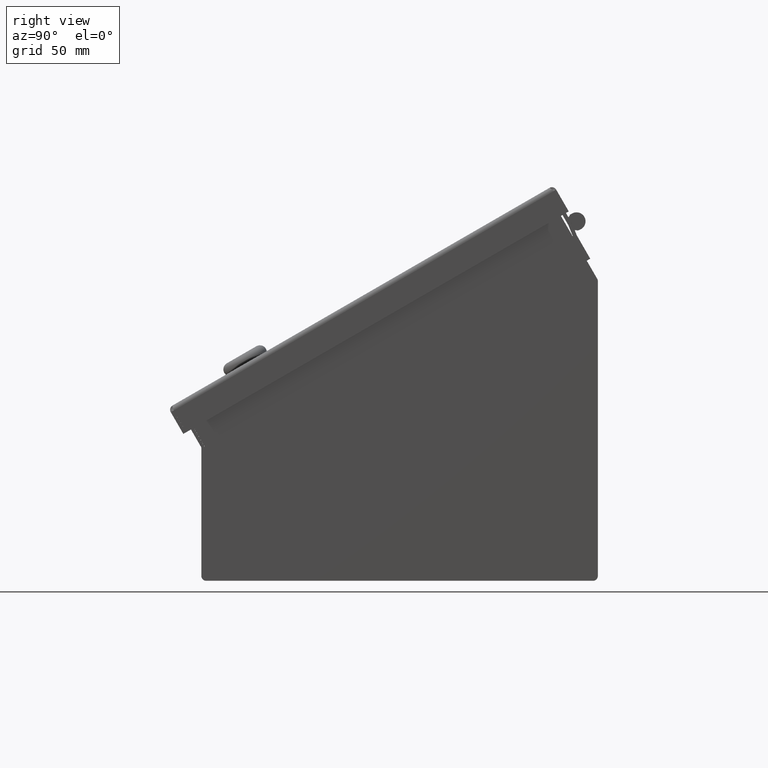
[diagram: clean part render]
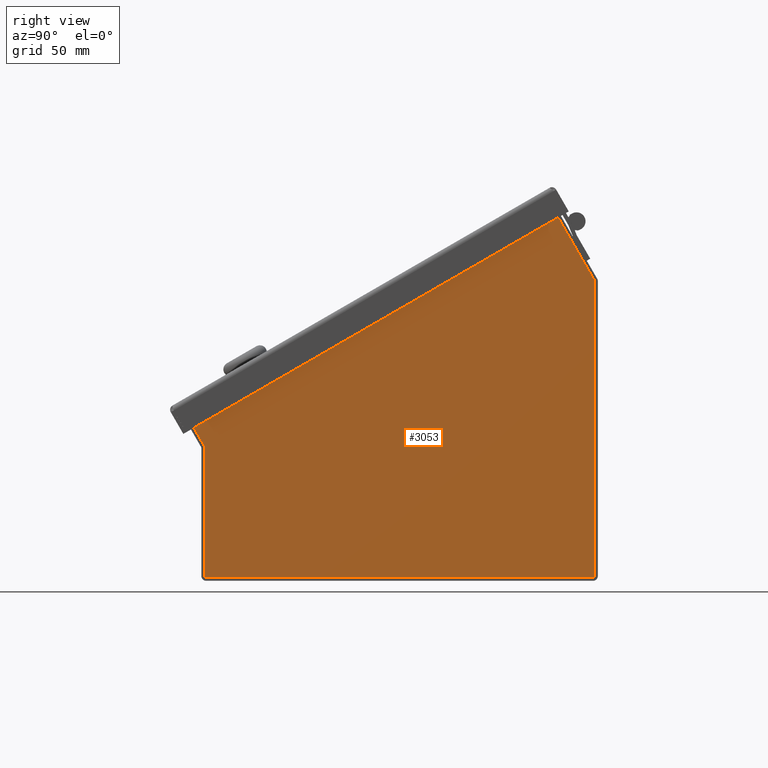
[diagram: same view with one face highlighted and labeled with its STEP entity id]
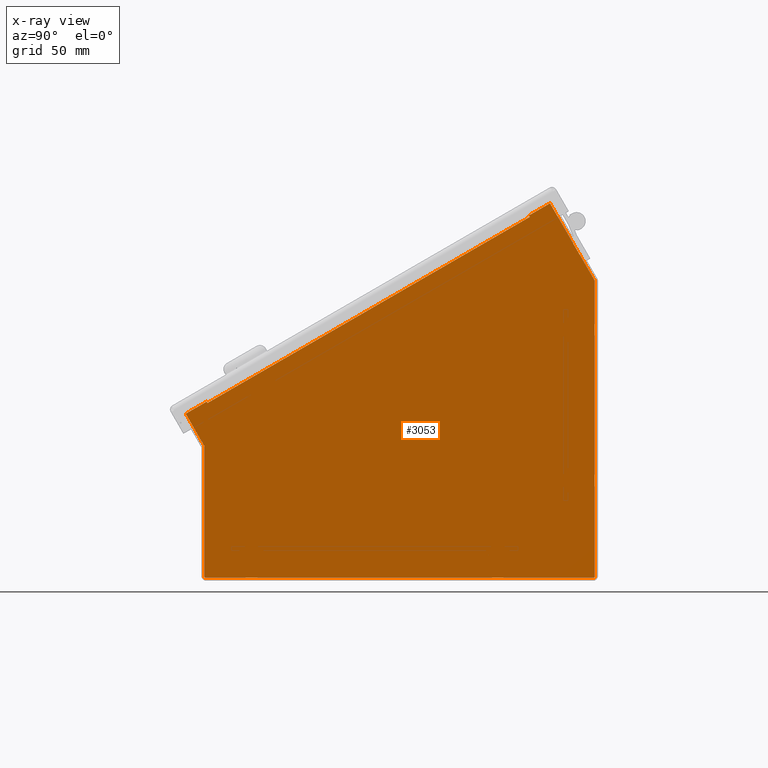
[diagram: x-ray of the same camera — body ghosted, the highlighted face saturated]
A machine part, right view. The second image highlights one B-rep face of the part: STEP entity #3053.
The next image is the same camera in x-ray: the body ghosted, the highlighted face saturated — about 0% of this face is hidden behind the body in this view.
In plain terms, the highlighted planar face has unit normal (-1, 0, 0).
Its self-contained STEP definition (entity closure, byte-faithful):
#3053 = ADVANCED_FACE( '', ( #7259 ), #7260, .F. );
#7259 = FACE_OUTER_BOUND( '', #19967, .T. );
#7260 = PLANE( '', #19968 );
#19967 = EDGE_LOOP( '', ( #49420, #49421, #49422, #49423, #49424, #49425, #49426, #49427, #49428, #49429, #49430, #49431 ) );
#19968 = AXIS2_PLACEMENT_3D( '', #49432, #49433, #49434 );
#49420 = ORIENTED_EDGE( '', *, *, #66604, .F. );
#49421 = ORIENTED_EDGE( '', *, *, #66605, .T. );
#49422 = ORIENTED_EDGE( '', *, *, #66606, .T. );
#49423 = ORIENTED_EDGE( '', *, *, #65719, .T. );
#49424 = ORIENTED_EDGE( '', *, *, #66607, .T. );
#49425 = ORIENTED_EDGE( '', *, *, #66608, .T. );
#49426 = ORIENTED_EDGE( '', *, *, #66609, .T. );
#49427 = ORIENTED_EDGE( '', *, *, #66610, .T. );
#49428 = ORIENTED_EDGE( '', *, *, #66611, .T. );
#49429 = ORIENTED_EDGE( '', *, *, #66612, .F. );
#49430 = ORIENTED_EDGE( '', *, *, #66613, .F. );
#49431 = ORIENTED_EDGE( '', *, *, #66016, .T. );
#49432 = CARTESIAN_POINT( '', ( 0.000000000000000, 0.000000000000000, 0.000000000000000 ) );
#49433 = DIRECTION( '', ( -1.00000000000000, 6.12303176911189E-017, 0.000000000000000 ) );
#49434 = DIRECTION( '', ( -6.12303176911189E-017, -1.00000000000000, 0.000000000000000 ) );
#65719 = EDGE_CURVE( '', #72427, #72428, #72429, .T. );
#66016 = EDGE_CURVE( '', #72928, #72929, #72930, .T. );
#66604 = EDGE_CURVE( '', #73862, #72929, #73863, .T. );
#66605 = EDGE_CURVE( '', #73862, #73864, #73865, .T. );
#66606 = EDGE_CURVE( '', #73864, #72427, #73866, .T. );
#66607 = EDGE_CURVE( '', #72428, #73867, #73868, .T. );
#66608 = EDGE_CURVE( '', #73867, #73869, #73870, .T. );
#66609 = EDGE_CURVE( '', #73869, #73871, #73872, .T. );
#66610 = EDGE_CURVE( '', #73871, #73873, #73874, .T. );
#66611 = EDGE_CURVE( '', #73873, #73875, #73876, .T. );
#66612 = EDGE_CURVE( '', #73877, #73875, #73878, .T. );
#66613 = EDGE_CURVE( '', #72928, #73877, #73879, .T. );
#72427 = VERTEX_POINT( '', #85066 );
#72428 = VERTEX_POINT( '', #85067 );
#72429 = LINE( '', #85068, #85069 );
#72928 = VERTEX_POINT( '', #86436 );
#72929 = VERTEX_POINT( '', #86437 );
#72930 = LINE( '', #86438, #86439 );
#73862 = VERTEX_POINT( '', #89182 );
#73863 = LINE( '', #89183, #89184 );
#73864 = VERTEX_POINT( '', #89185 );
#73865 = LINE( '', #89186, #89187 );
#73866 = LINE( '', #89188, #89189 );
#73867 = VERTEX_POINT( '', #89190 );
#73868 = LINE( '', #89191, #89192 );
#73869 = VERTEX_POINT( '', #89193 );
#73870 = LINE( '', #89194, #89195 );
#73871 = VERTEX_POINT( '', #89196 );
#73872 = LINE( '', #89197, #89198 );
#73873 = VERTEX_POINT( '', #89199 );
#73874 = LINE( '', #89200, #89201 );
#73875 = VERTEX_POINT( '', #89202 );
#73876 = LINE( '', #89203, #89204 );
#73877 = VERTEX_POINT( '', #89205 );
#73878 = LINE( '', #89206, #89207 );
#73879 = LINE( '', #89208, #89209 );
#85066 = CARTESIAN_POINT( '', ( -6.23110940286848E-015, -101.765100000000, 7.31301395082407 ) );
#85067 = CARTESIAN_POINT( '', ( -5.68210612838637E-015, -92.7989000000000, -8.21690000000000 ) );
#85068 = CARTESIAN_POINT( '', ( -5.68210612838637E-015, -92.7989000000000, -8.21690000000000 ) );
#85069 = VECTOR( '', #104222, 1000.00000000000 );
#86436 = CARTESIAN_POINT( '', ( 3.79106577384630E-015, 61.9148473632071, 100.927248310557 ) );
#86437 = CARTESIAN_POINT( '', ( -5.59342706004960E-015, -91.3506130780846, 12.4393934673050 ) );
#86438 = CARTESIAN_POINT( '', ( 3.79106577384630E-015, 61.9148473632071, 100.927248310557 ) );
#86439 = VECTOR( '', #104366, 1000.00000000000 );
#89182 = CARTESIAN_POINT( '', ( -5.66507461726111E-015, -91.3523451288922, 12.4383934673050 ) );
#89183 = CARTESIAN_POINT( '', ( 3.71963032467721E-015, 61.9165794140147, 100.928248310557 ) );
#89184 = VECTOR( '', #104723, 1000.00000000000 );
#89185 = CARTESIAN_POINT( '', ( -5.66507461726111E-015, -91.7361794140147, 13.1032139508241 ) );
#89186 = CARTESIAN_POINT( '', ( -5.66507461726111E-015, -92.5207451288922, 14.4621216308685 ) );
#89187 = VECTOR( '', #104724, 1000.00000000000 );
#89188 = CARTESIAN_POINT( '', ( -6.23110940286848E-015, -101.765100000000, 7.31301395082407 ) );
#89189 = VECTOR( '', #104725, 999.999999999999 );
#89190 = CARTESIAN_POINT( '', ( -5.68210612838637E-015, -92.7989000000000, -70.5993000000000 ) );
#89191 = CARTESIAN_POINT( '', ( -5.68210612838637E-015, -92.7989000000000, -8.21690000000000 ) );
#89192 = VECTOR( '', #104726, 1000.00000000000 );
#89193 = CARTESIAN_POINT( '', ( 5.68210612838637E-015, 92.7989000000000, -70.5993000000000 ) );
#89194 = CARTESIAN_POINT( '', ( -5.68210612838637E-015, -92.7989000000000, -70.5993000000000 ) );
#89195 = VECTOR( '', #104727, 1000.00000000000 );
#89196 = CARTESIAN_POINT( '', ( 5.68210612838637E-015, 92.7989000000000, 70.5993000000000 ) );
#89197 = CARTESIAN_POINT( '', ( 5.68210612838637E-015, 92.7989000000000, -70.5993000000000 ) );
#89198 = VECTOR( '', #104728, 1000.00000000000 );
#89199 = CARTESIAN_POINT( '', ( 4.38036182033672E-015, 71.5391000000000, 107.422353758753 ) );
#89200 = CARTESIAN_POINT( '', ( 4.38036182033672E-015, 71.5391000000000, 107.422353758753 ) );
#89201 = VECTOR( '', #104729, 1000.00000000000 );
#89202 = CARTESIAN_POINT( '', ( 3.71963032467721E-015, 61.5101794140147, 101.632153758753 ) );
#89203 = CARTESIAN_POINT( '', ( 3.76618177273663E-015, 61.5084473632071, 101.631153758753 ) );
#89204 = VECTOR( '', #104730, 1000.00000000000 );
#89205 = CARTESIAN_POINT( '', ( 3.71963032467721E-015, 61.9165794140147, 100.928248310557 ) );
#89206 = CARTESIAN_POINT( '', ( 3.71963032467721E-015, 60.7481794140147, 102.951976474120 ) );
#89207 = VECTOR( '', #104731, 1000.00000000000 );
#89208 = CARTESIAN_POINT( '', ( 3.71963032467721E-015, 61.9165794140147, 100.928248310557 ) );
#89209 = VECTOR( '', #104732, 1000.00000000000 );
#104222 = DIRECTION( '', ( 3.06151588455594E-017, 0.500000000000000, -0.866025403784439 ) );
#104366 = DIRECTION( '', ( -5.30270106023007E-017, -0.866025403784439, -0.500000000000000 ) );
#104723 = DIRECTION( '', ( 5.30270106022788E-017, 0.866025403784459, 0.499999999999965 ) );
#104724 = DIRECTION( '', ( -9.89008872502861E-031, -0.500000000000006, 0.866025403784435 ) );
#104725 = DIRECTION( '', ( -5.30270106023007E-017, -0.866025403784438, -0.500000000000000 ) );
#104726 = DIRECTION( '', ( 1.36214919003183E-032, 2.22463191666471E-016, -1.00000000000000 ) );
#104727 = DIRECTION( '', ( 6.12303176911189E-017, 1.00000000000000, 0.000000000000000 ) );
#104728 = DIRECTION( '', ( -6.01805794336782E-033, -9.82855907056759E-017, 1.00000000000000 ) );
#104729 = DIRECTION( '', ( -3.06151588455594E-017, -0.500000000000000, 0.866025403784439 ) );
#104730 = DIRECTION( '', ( -5.30270106023007E-017, -0.866025403784439, -0.500000000000000 ) );
#104731 = DIRECTION( '', ( 0.000000000000000, -0.499999999999999, 0.866025403784439 ) );
#104732 = DIRECTION( '', ( 5.30270106022788E-017, 0.866025403784459, 0.499999999999965 ) );